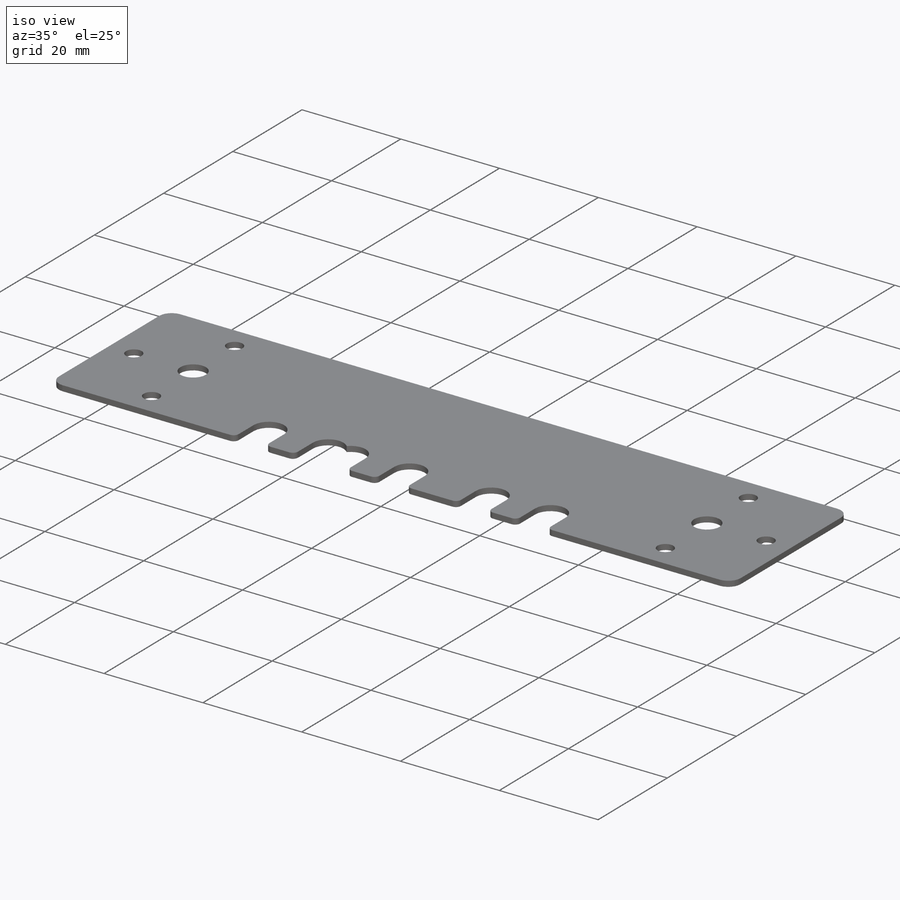
[diagram: iso view]
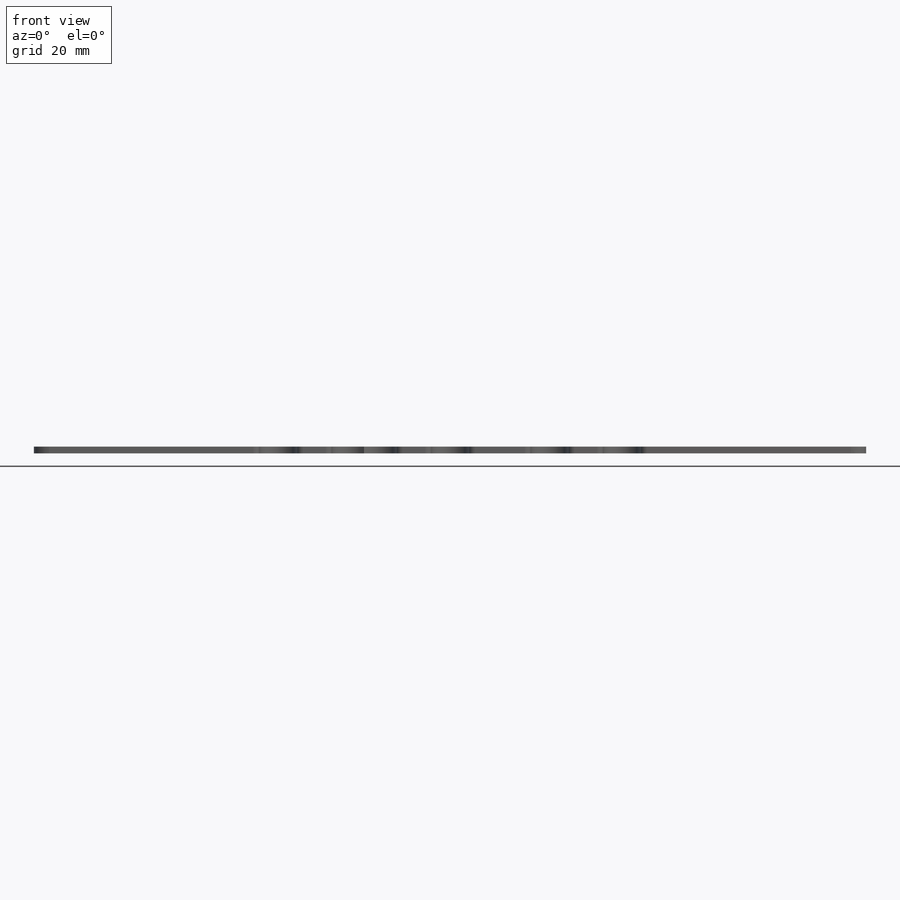
[diagram: front view]
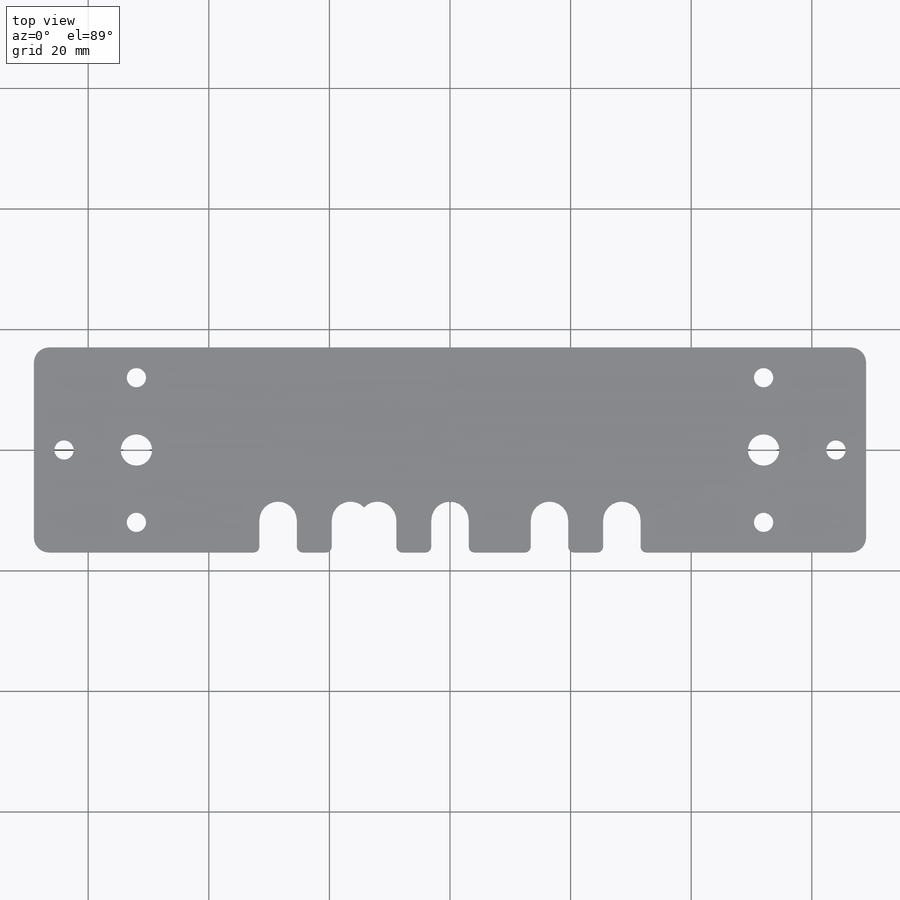
[diagram: top view]
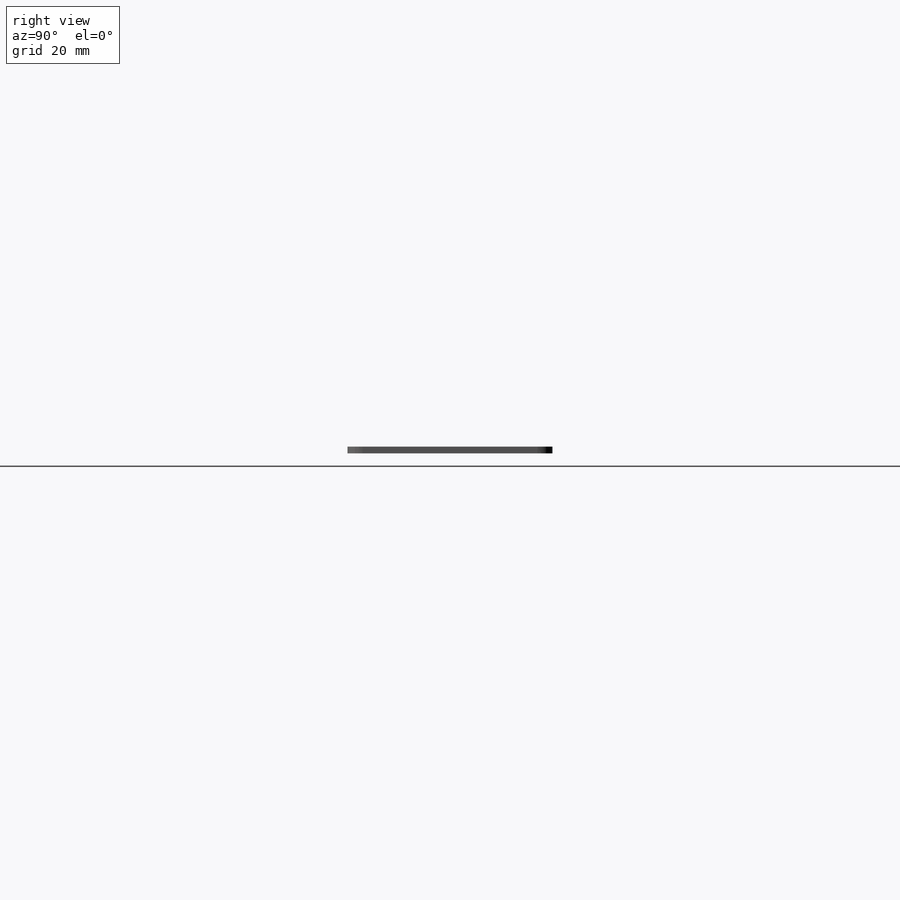
[diagram: right view]
SOLIDWORKS PART (.sldprt)
format: sldprt  version: not decoded by parser v0  size: 328,192 bytes
history: native  units: mm
features: sketch x5, cut_extrude x4, material x1, extrude x1, fillet x1 (+11 scaffold rows collapsed)
feature tree (23):
  scaffold x11  (default folders/planes/origin — collapsed)
  material  "Material <not specified>"
  sketch  "Sketch1"  dims[D3=2.5mm D1=138.0mm D2=34.0mm]
  extrude  "Boss-Extrude1"  Depth=1.11mm
  sketch  "Sketch3"  dims[c1.D2=2.5mm c1.D3=3.2mm c1.D4=3.2mm c1.D5=3.2mm c1.D9=3.2mm c1.D10=3.2mm c1.D11=3.2mm c1.D13=3.15mm c1.D15=3.15mm c1.D16=3.15mm c2.D15=5.2mm c2.D16=5.2mm c2.D1=12.0mm c2.D2=12.0mm c2.D6=12.0mm c2.D7=12.0mm c2.D8=17.0mm c2.D12=12.0mm c2.D13=12.0mm c2.D14=17.0mm]
  cut_extrude  "Cut-Extrude5"  [1 undecoded]
  sketch  "Sketch4"  dims[D1=6.2mm D2=6.2mm]
  cut_extrude  "Cut-Extrude6"  [1 undecoded]
  sketch  "Sketch5"  dims[D1=6.2mm D2=6.2mm D3=6.2mm D4=6.2mm]
  cut_extrude  "Cut-Extrude7"  [1 undecoded]
  sketch  "Sketch6"  dims[D1=6.0mm D2=6.0mm D3=6.0mm D4=6.0mm D5=6.0mm]
  cut_extrude  "Cut-Extrude8"  [1 undecoded]
  fillet  "Fillet1"  Radius=1mm
decode coverage: 7 of 11 modeling features carry decoded parameters
note: 4 parameter values undecoded
summary: no parameter record found for 4 features
note: suppression state not decoded; provenance and decode notes live in map.json
